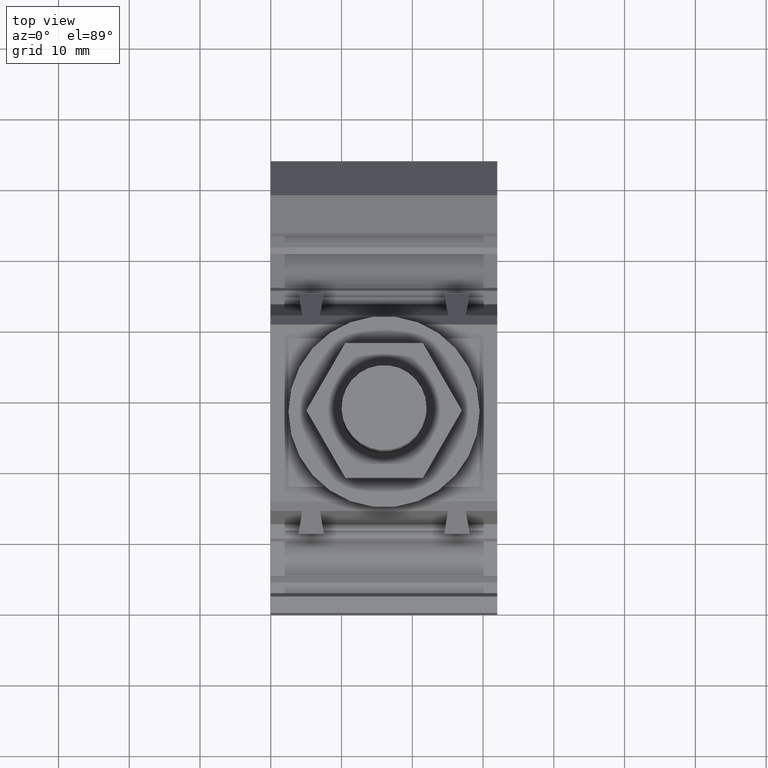
[diagram: clean part render]
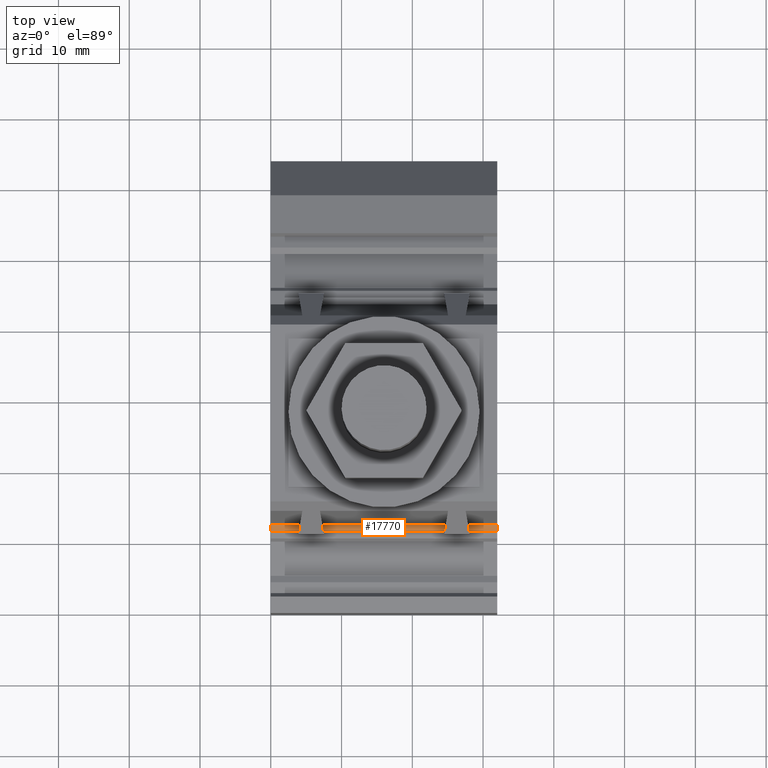
[diagram: same view with one face highlighted and labeled with its STEP entity id]
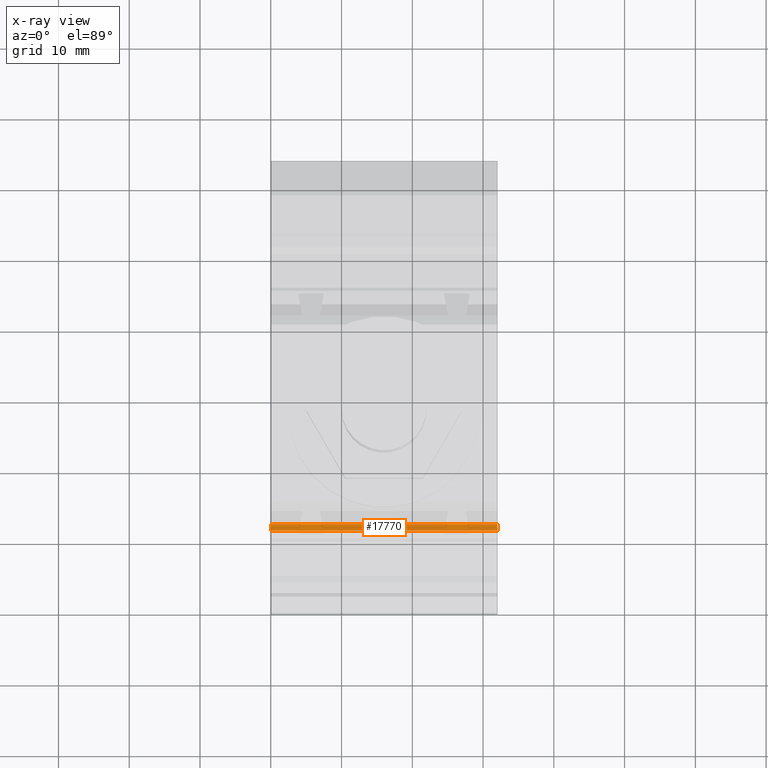
[diagram: x-ray of the same camera — body ghosted, the highlighted face saturated]
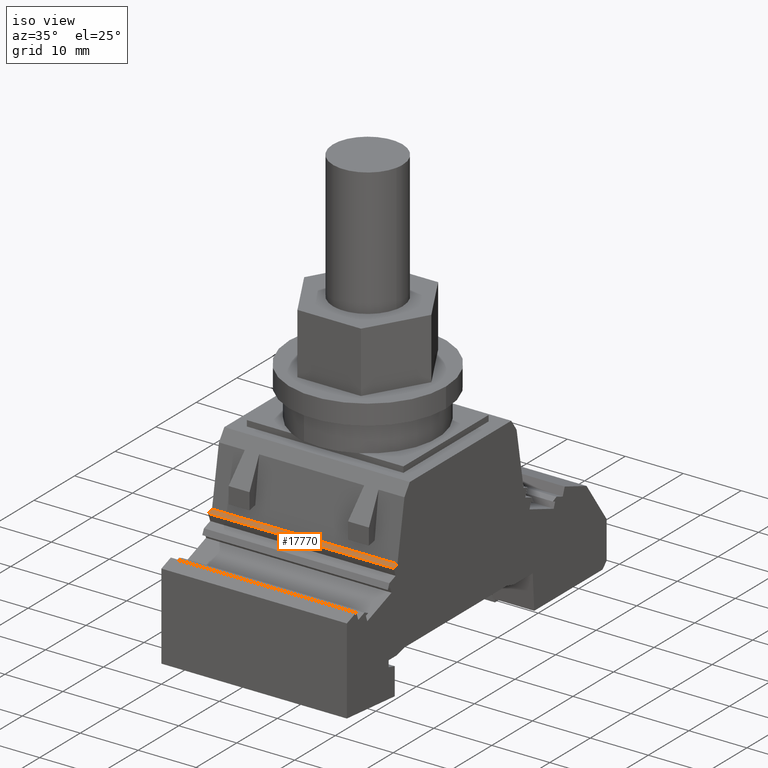
[diagram: same view with one face highlighted and labeled with its STEP entity id]
A machine part, top view. The second image highlights one B-rep face of the part: STEP entity #17770.
The next image is the same camera in x-ray: the body ghosted, the highlighted face saturated — about 0% of this face is hidden behind the body in this view.
A second angle (iso view) of the same face is appended — the face is thin or edge-on in the first view.
In plain terms, the highlighted planar face has unit normal (-0, 0.342, -0.9397).
Its self-contained STEP definition (entity closure, byte-faithful):
#1560=CARTESIAN_POINT('',(1.1539214028744E-11,12.4685849092806,
20.9970926258439));
#1570=VERTEX_POINT('',#1560);
#1600=CARTESIAN_POINT('',(-7.38964445190504E-13,-25.0169236945183,
7.35348327767085));
#1610=DIRECTION('',(3.0759075968379E-13,0.93969262078542,
0.342020143327011));
#1620=VECTOR('',#1610,1.);
#1630=LINE('',#1600,#1620);
#1640=CARTESIAN_POINT('',(1.12407860797248E-11,11.5265053748442,
20.6542037169962));
#1650=VERTEX_POINT('',#1640);
#1660=EDGE_CURVE('',#1650,#1570,#1630,.T.);
#5950=CARTESIAN_POINT('',(32.0000000000254,11.5265053756398,
20.654203717257));
#5960=VERTEX_POINT('',#5950);
#5990=CARTESIAN_POINT('',(32.0000000000134,-25.0169236945612,
7.35348327762647));
#6000=DIRECTION('',(-3.0741402507983E-13,-0.93969262078542,
-0.342020143327011));
#6010=VECTOR('',#6000,1.);
#6020=LINE('',#5990,#6010);
#6030=CARTESIAN_POINT('',(32.0000000000257,12.4685849092806,
20.9970926258152));
#6040=VERTEX_POINT('',#6030);
#6050=EDGE_CURVE('',#6040,#5960,#6020,.T.);
#17480=CARTESIAN_POINT('',(1.1539214028744E-11,12.4685849092806,
20.9970926258439));
#17490=DIRECTION('',(-8.45235697783516E-13,0.342020143327011,
-0.93969262078542));
#17500=DIRECTION('',(3.0759075968379E-13,0.93969262078542,
0.342020143327011));
#17510=AXIS2_PLACEMENT_3D('',#17480,#17490,#17500);
#17520=PLANE('',#17510);
#17530=ORIENTED_EDGE('',*,*,#1660,.F.);
#17540=CARTESIAN_POINT('',(-89.7753396328187,12.4685849092806,
20.9970926259247));
#17550=DIRECTION('',(1.,4.68674043851448E-17,-8.99463983744699E-13));
#17560=VECTOR('',#17550,1.);
#17570=LINE('',#17540,#17560);
#17580=EDGE_CURVE('',#1570,#6040,#17570,.T.);
#17590=ORIENTED_EDGE('',*,*,#17580,.F.);
#17600=ORIENTED_EDGE('',*,*,#6050,.F.);
#17610=CARTESIAN_POINT('',(-89.77533963282,11.5265053694992,
20.6542037151315));
#17620=DIRECTION('',(1.,5.0425374303916E-11,1.7453854256354E-11));
#17630=VECTOR('',#17620,1.);
#17640=LINE('',#17610,#17630);
#17650=CARTESIAN_POINT('',(16.399999998278,11.5265053748531,
20.6542037169847));
#17660=VERTEX_POINT('',#17650);
#17670=EDGE_CURVE('',#17660,#5960,#17640,.T.);
#17680=ORIENTED_EDGE('',*,*,#17670,.T.);
#17690=CARTESIAN_POINT('',(-89.77533963282,11.5265053748442,
20.6542037170769));
#17700=DIRECTION('',(1.,4.68674043849429E-17,-8.99463983744699E-13));
#17710=VECTOR('',#17700,1.);
#17720=LINE('',#17690,#17710);
#17730=EDGE_CURVE('',#1650,#17660,#17720,.T.);
#17740=ORIENTED_EDGE('',*,*,#17730,.T.);
#17750=EDGE_LOOP('',(#17740,#17680,#17600,#17590,#17530));
#17760=FACE_OUTER_BOUND('',#17750,.T.);
#17770=ADVANCED_FACE('',(#17760),#17520,.F.);